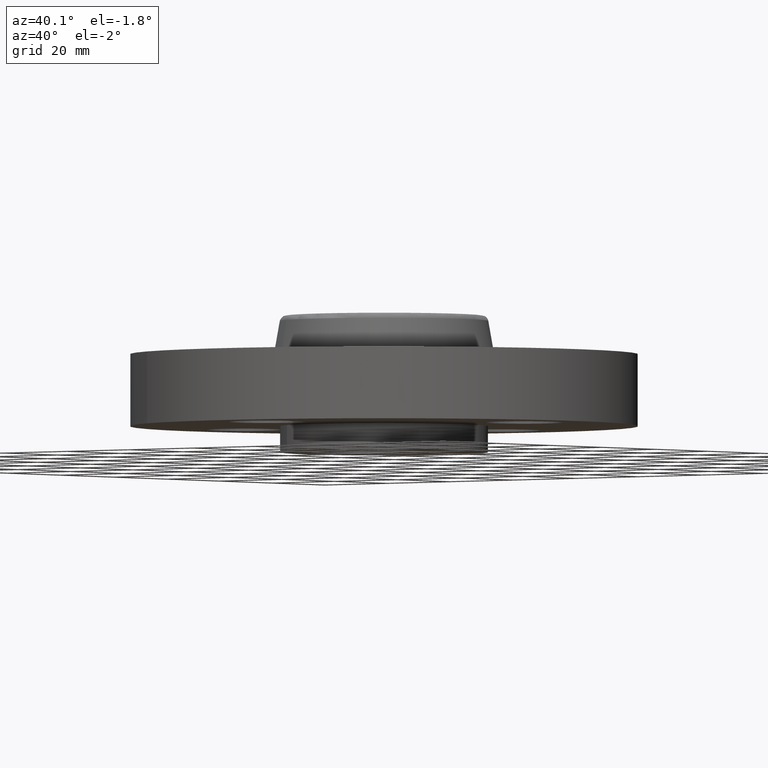
[diagram: clean part render]
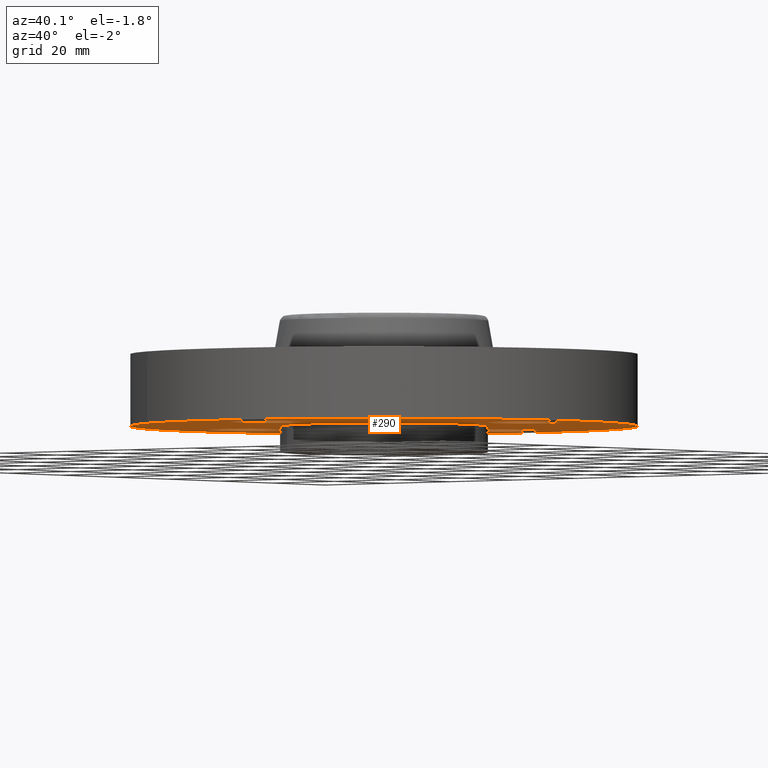
[diagram: same view with one face highlighted and labeled with its STEP entity id]
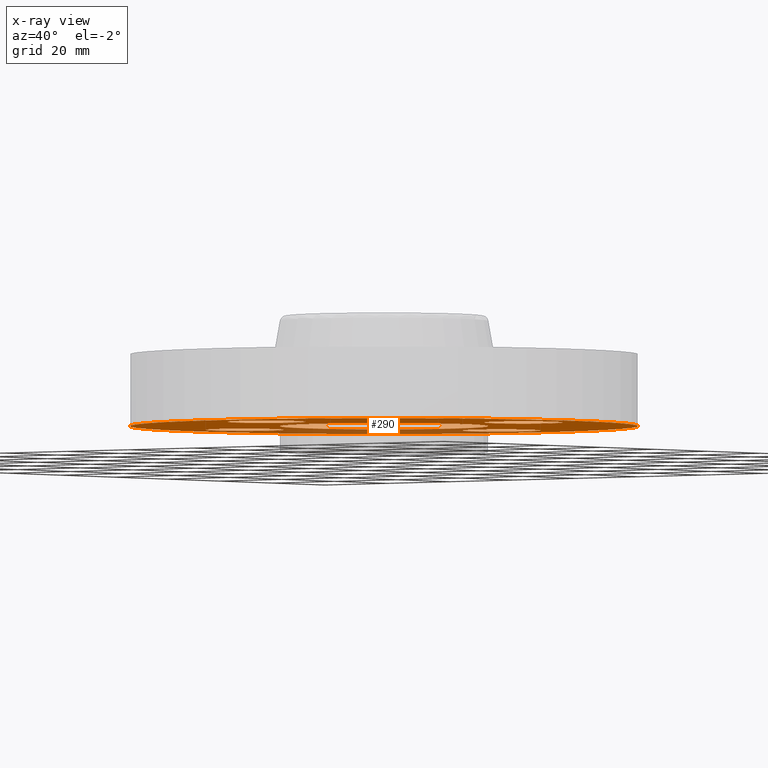
[diagram: x-ray of the same camera — body ghosted, the highlighted face saturated]
A machine part, auxiliary view. The second image highlights one B-rep face of the part: STEP entity #290.
The next image is the same camera in x-ray: the body ghosted, the highlighted face saturated — about 22% of this face is hidden behind the body in this view.
In plain terms, the highlighted planar face has unit normal (0, 0, -1).
Its self-contained STEP definition (entity closure, byte-faithful):
#162=AXIS2_PLACEMENT_3D('Circle Axis2P3D',#160,#161,$) ;
#181=AXIS2_PLACEMENT_3D('Circle Axis2P3D',#179,#180,$) ;
#194=AXIS2_PLACEMENT_3D('Plane Axis2P3D',#191,#192,#193) ;
#198=AXIS2_PLACEMENT_3D('Circle Axis2P3D',#196,#197,$) ;
#207=AXIS2_PLACEMENT_3D('Circle Axis2P3D',#205,#206,$) ;
#216=AXIS2_PLACEMENT_3D('Circle Axis2P3D',#214,#215,$) ;
#225=AXIS2_PLACEMENT_3D('Circle Axis2P3D',#223,#224,$) ;
#238=AXIS2_PLACEMENT_3D('Circle Axis2P3D',#236,#237,$) ;
#247=AXIS2_PLACEMENT_3D('Circle Axis2P3D',#245,#246,$) ;
#256=AXIS2_PLACEMENT_3D('Circle Axis2P3D',#254,#255,$) ;
#265=AXIS2_PLACEMENT_3D('Circle Axis2P3D',#263,#264,$) ;
#274=AXIS2_PLACEMENT_3D('Circle Axis2P3D',#272,#273,$) ;
#283=AXIS2_PLACEMENT_3D('Circle Axis2P3D',#281,#282,$) ;
#157=CARTESIAN_POINT('Vertex',(-0.479425538606,-0.877582561894,1.39870617276E-016)) ;
#160=CARTESIAN_POINT('Axis2P3D Location',(0.,0.,1.39870617276E-016)) ;
#164=CARTESIAN_POINT('Vertex',(0.479425538606,0.877582561894,1.39870617276E-016)) ;
#179=CARTESIAN_POINT('Axis2P3D Location',(0.,0.,1.39870617276E-016)) ;
#191=CARTESIAN_POINT('Axis2P3D Location',(0.,1.,0.)) ;
#196=CARTESIAN_POINT('Axis2P3D Location',(0.,0.,0.)) ;
#200=CARTESIAN_POINT('Vertex',(-1.1697983142,-2.14130145102,2.79741234551E-016)) ;
#202=CARTESIAN_POINT('Vertex',(1.1697983142,2.14130145102,2.79741234551E-016)) ;
#205=CARTESIAN_POINT('Axis2P3D Location',(0.,0.,0.)) ;
#214=CARTESIAN_POINT('Axis2P3D Location',(1.75000000001,0.,0.)) ;
#218=CARTESIAN_POINT('Vertex',(2.07909346072,-0.179784576977,0.)) ;
#220=CARTESIAN_POINT('Vertex',(1.4209065393,0.179784576977,0.)) ;
#223=CARTESIAN_POINT('Axis2P3D Location',(1.75000000001,1.39870617276E-016,0.)) ;
#236=CARTESIAN_POINT('Axis2P3D Location',(-3.1470888887E-016,-1.75000000001,0.)) ;
#240=CARTESIAN_POINT('Vertex',(0.179784576977,-1.4209065393,0.)) ;
#242=CARTESIAN_POINT('Vertex',(-0.179784576977,-2.07909346072,0.)) ;
#245=CARTESIAN_POINT('Axis2P3D Location',(-3.49676543189E-016,-1.75000000001,0.)) ;
#254=CARTESIAN_POINT('Axis2P3D Location',(-1.75000000001,-4.19611851827E-016,0.)) ;
#258=CARTESIAN_POINT('Vertex',(-1.4209065393,-0.179784576977,0.)) ;
#260=CARTESIAN_POINT('Vertex',(-2.07909346072,0.179784576977,0.)) ;
#263=CARTESIAN_POINT('Axis2P3D Location',(-1.75000000001,-2.79741234551E-016,0.)) ;
#272=CARTESIAN_POINT('Axis2P3D Location',(-4.19611851827E-016,1.75000000001,0.)) ;
#276=CARTESIAN_POINT('Vertex',(-0.179784576977,1.4209065393,0.)) ;
#278=CARTESIAN_POINT('Vertex',(0.179784576977,2.07909346072,0.)) ;
#281=CARTESIAN_POINT('Axis2P3D Location',(-3.1470888887E-016,1.75000000001,0.)) ;
#161=DIRECTION('Axis2P3D Direction',(0.,0.,-0.0393700787402)) ;
#180=DIRECTION('Axis2P3D Direction',(0.,0.,-0.0393700787402)) ;
#192=DIRECTION('Axis2P3D Direction',(0.,0.,-0.0393700787402)) ;
#193=DIRECTION('Axis2P3D XDirection',(0.0393700787402,0.,0.)) ;
#197=DIRECTION('Axis2P3D Direction',(0.,0.,-0.0393700787402)) ;
#206=DIRECTION('Axis2P3D Direction',(0.,0.,-0.0393700787402)) ;
#215=DIRECTION('Axis2P3D Direction',(0.,0.,-0.0393700787402)) ;
#224=DIRECTION('Axis2P3D Direction',(0.,0.,-0.0393700787402)) ;
#237=DIRECTION('Axis2P3D Direction',(0.,0.,-0.0393700787402)) ;
#246=DIRECTION('Axis2P3D Direction',(0.,0.,-0.0393700787402)) ;
#255=DIRECTION('Axis2P3D Direction',(0.,0.,-0.0393700787402)) ;
#264=DIRECTION('Axis2P3D Direction',(0.,0.,-0.0393700787402)) ;
#273=DIRECTION('Axis2P3D Direction',(0.,0.,-0.0393700787402)) ;
#282=DIRECTION('Axis2P3D Direction',(0.,0.,-0.0393700787402)) ;
#211=ORIENTED_EDGE('',*,*,#204,.T.) ;
#212=ORIENTED_EDGE('',*,*,#209,.T.) ;
#229=ORIENTED_EDGE('',*,*,#222,.F.) ;
#230=ORIENTED_EDGE('',*,*,#227,.F.) ;
#233=ORIENTED_EDGE('',*,*,#183,.F.) ;
#234=ORIENTED_EDGE('',*,*,#166,.F.) ;
#251=ORIENTED_EDGE('',*,*,#244,.F.) ;
#252=ORIENTED_EDGE('',*,*,#249,.F.) ;
#269=ORIENTED_EDGE('',*,*,#262,.F.) ;
#270=ORIENTED_EDGE('',*,*,#267,.F.) ;
#287=ORIENTED_EDGE('',*,*,#280,.F.) ;
#288=ORIENTED_EDGE('',*,*,#285,.F.) ;
#231=FACE_BOUND('',#228,.T.) ;
#235=FACE_BOUND('',#232,.T.) ;
#253=FACE_BOUND('',#250,.T.) ;
#271=FACE_BOUND('',#268,.T.) ;
#289=FACE_BOUND('',#286,.T.) ;
#290=ADVANCED_FACE('PartBody',(#213,#231,#235,#253,#271,#289),#195,.T.) ;
#163=CIRCLE('generated circle',#162,1.) ;
#182=CIRCLE('generated circle',#181,1.) ;
#199=CIRCLE('generated circle',#198,2.44000000001) ;
#208=CIRCLE('generated circle',#207,2.44000000001) ;
#217=CIRCLE('generated circle',#216,0.375000000001) ;
#226=CIRCLE('generated circle',#225,0.375000000001) ;
#239=CIRCLE('generated circle',#238,0.375000000001) ;
#248=CIRCLE('generated circle',#247,0.375000000001) ;
#257=CIRCLE('generated circle',#256,0.375000000002) ;
#266=CIRCLE('generated circle',#265,0.375000000002) ;
#275=CIRCLE('generated circle',#274,0.375000000001) ;
#284=CIRCLE('generated circle',#283,0.375000000001) ;
#166=EDGE_CURVE('',#158,#165,#163,.T.) ;
#183=EDGE_CURVE('',#165,#158,#182,.T.) ;
#204=EDGE_CURVE('',#201,#203,#199,.T.) ;
#209=EDGE_CURVE('',#203,#201,#208,.T.) ;
#222=EDGE_CURVE('',#219,#221,#217,.T.) ;
#227=EDGE_CURVE('',#221,#219,#226,.T.) ;
#244=EDGE_CURVE('',#241,#243,#239,.T.) ;
#249=EDGE_CURVE('',#243,#241,#248,.T.) ;
#262=EDGE_CURVE('',#259,#261,#257,.T.) ;
#267=EDGE_CURVE('',#261,#259,#266,.T.) ;
#280=EDGE_CURVE('',#277,#279,#275,.T.) ;
#285=EDGE_CURVE('',#279,#277,#284,.T.) ;
#210=EDGE_LOOP('',(#211,#212)) ;
#228=EDGE_LOOP('',(#229,#230)) ;
#232=EDGE_LOOP('',(#233,#234)) ;
#250=EDGE_LOOP('',(#251,#252)) ;
#268=EDGE_LOOP('',(#269,#270)) ;
#286=EDGE_LOOP('',(#287,#288)) ;
#213=FACE_OUTER_BOUND('',#210,.T.) ;
#195=PLANE('',#194) ;
#158=VERTEX_POINT('',#157) ;
#165=VERTEX_POINT('',#164) ;
#201=VERTEX_POINT('',#200) ;
#203=VERTEX_POINT('',#202) ;
#219=VERTEX_POINT('',#218) ;
#221=VERTEX_POINT('',#220) ;
#241=VERTEX_POINT('',#240) ;
#243=VERTEX_POINT('',#242) ;
#259=VERTEX_POINT('',#258) ;
#261=VERTEX_POINT('',#260) ;
#277=VERTEX_POINT('',#276) ;
#279=VERTEX_POINT('',#278) ;